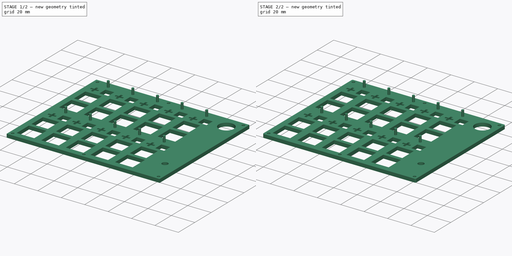
[diagram: build sequence overview — one tinted view per stage of 2, left to right]
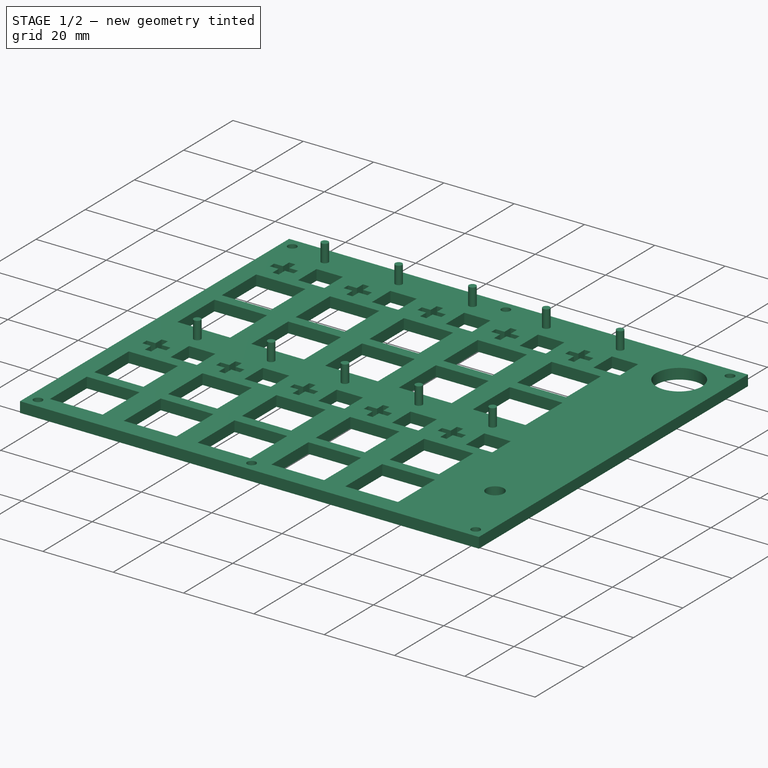
[diagram: stage 1 of 2 — iso view after this stage's code; geometry added in this stage tinted green]
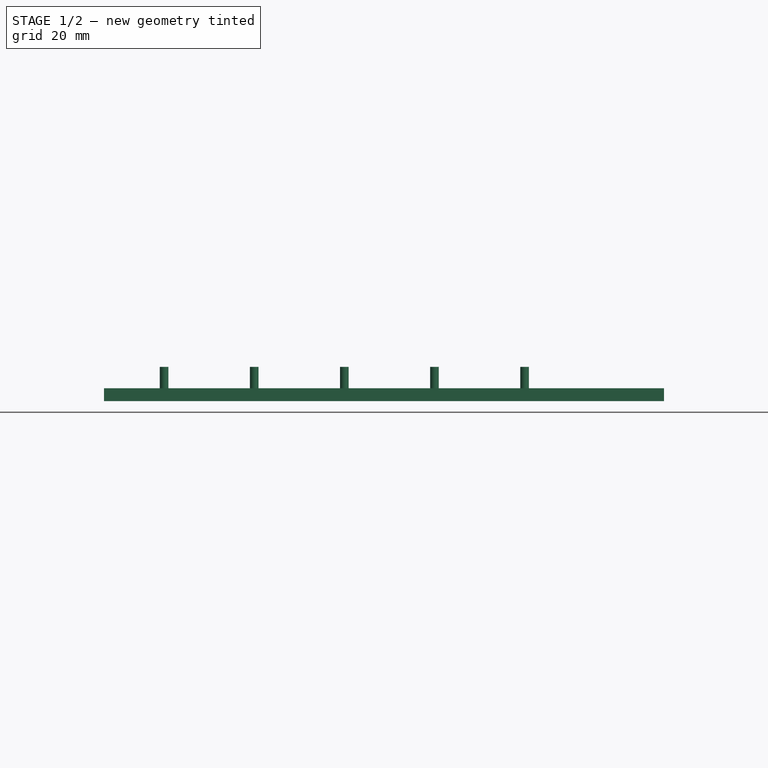
[diagram: stage 1 of 2 — front view after this stage's code; geometry added in this stage tinted green]
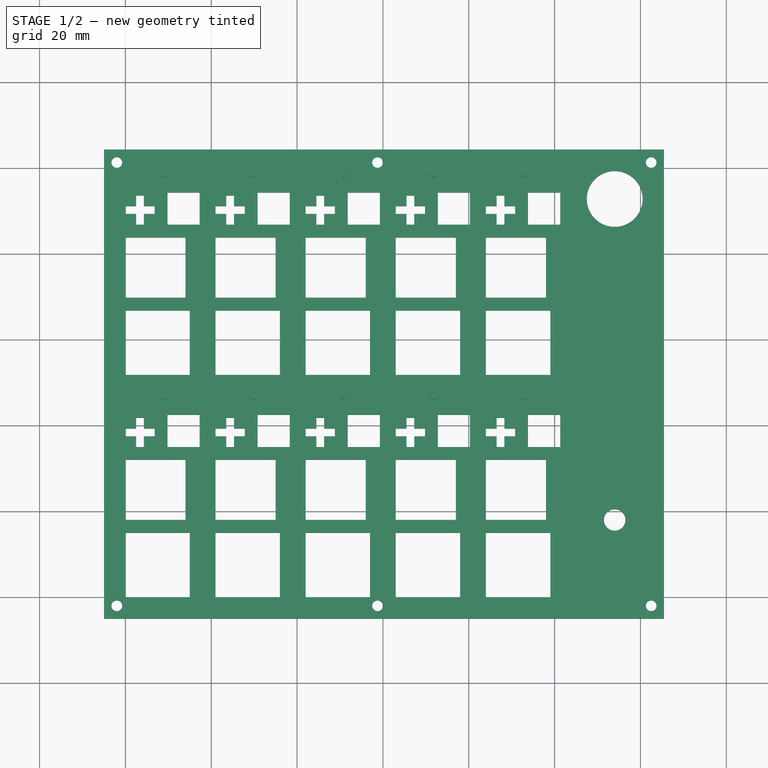
[diagram: stage 1 of 2 — top view after this stage's code; geometry added in this stage tinted green]
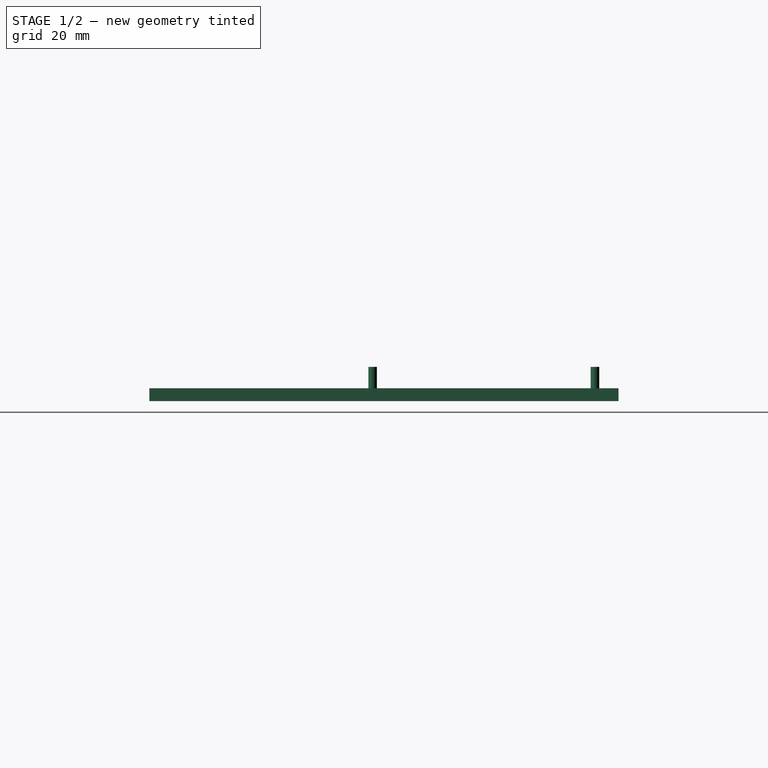
[diagram: stage 1 of 2 — right view after this stage's code; geometry added in this stage tinted green]
FCSTD DOCUMENT  (FreeCAD 0.18R16146 (Git))
Label: lube_station
License: All rights reserved
LicenseURL: http://en.wikipedia.org/wiki/All_rights_reserved
objects: Sketcher::SketchObject×2, PartDesign::Pad×2, PartDesign::Fillet×1, PartDesign::Body×1
note: 8 computed .brp shape members not serialized (recipe doc carries the construction recipe); baked Part::Feature solids carry a one-line shape summary decoded from their .brp

FEATURE [Sketcher::SketchObject] Sketch
  MapMode = 5
  Support = -> [XY_Plane]
  sketch-geometry (256):
    g0: LineSegment StartX=0 StartY=66.8 StartZ=0 EndX=15 EndY=66.8 EndZ=0
    g1: LineSegment StartX=15 StartY=66.8 StartZ=0 EndX=15 EndY=51.8 EndZ=0
    g2: LineSegment StartX=15 StartY=51.8 StartZ=0 EndX=0 EndY=51.8 EndZ=0
    g3: LineSegment StartX=0 StartY=51.8 StartZ=0 EndX=0 EndY=66.8 EndZ=0
    g4: LineSegment StartX=0 StartY=83.8 StartZ=0 EndX=14 EndY=83.8 EndZ=0
    g5: LineSegment StartX=14 StartY=83.8 StartZ=0 EndX=14 EndY=69.8 EndZ=0
    g6: LineSegment StartX=14 StartY=69.8 StartZ=0 EndX=0 EndY=69.8 EndZ=0
    g7: LineSegment StartX=0 StartY=69.8 StartZ=0 EndX=0 EndY=83.8 EndZ=0
    g8: LineSegment StartX=9.8 StartY=94.3 StartZ=0 EndX=17.3 EndY=94.3 EndZ=0
    g9: LineSegment StartX=17.3 StartY=94.3 StartZ=0 EndX=17.3 EndY=86.8 EndZ=0
    g10: LineSegment StartX=17.3 StartY=86.8 StartZ=0 EndX=9.8 EndY=86.8 EndZ=0
    g11: LineSegment StartX=9.8 StartY=86.8 StartZ=0 EndX=9.8 EndY=94.3 EndZ=0
    g12: LineSegment StartX=2.5 StartY=93.6 StartZ=0 EndX=4.3 EndY=93.6 EndZ=0
    g13: LineSegment StartX=4.3 StartY=93.6 StartZ=0 EndX=4.3 EndY=91.1 EndZ=0
    g14: LineSegment StartX=4.3 StartY=86.8 StartZ=0 EndX=2.5 EndY=86.8 EndZ=0
    g15: LineSegment StartX=2.5 StartY=86.8 StartZ=0 EndX=2.5 EndY=89.3 EndZ=0
    g16: LineSegment StartX=0 StartY=91.1 StartZ=0 EndX=2.5 EndY=91.1 EndZ=0
    g17: LineSegment StartX=6.8 StartY=91.1 StartZ=0 EndX=6.8 EndY=89.3 EndZ=0
    g18: LineSegment StartX=6.8 StartY=89.3 StartZ=0 EndX=4.3 EndY=89.3 EndZ=0
    g19: LineSegment StartX=0 StartY=89.3 StartZ=0 EndX=0 EndY=91.1 EndZ=0
    g20: LineSegment StartX=4.3 StartY=91.1 StartZ=0 EndX=6.8 EndY=91.1 EndZ=0
    g21: LineSegment StartX=4.3 StartY=89.3 StartZ=0 EndX=4.3 EndY=86.8 EndZ=0
    g22: LineSegment StartX=2.5 StartY=91.1 StartZ=0 EndX=2.5 EndY=93.6 EndZ=0
    g23: LineSegment StartX=2.5 StartY=89.3 StartZ=0 EndX=0 EndY=89.3 EndZ=0
    g24: LineSegment StartX=42 StartY=66.8 StartZ=0 EndX=57 EndY=66.8 EndZ=0
    g25: LineSegment StartX=57 StartY=66.8 StartZ=0 EndX=57 EndY=51.8 EndZ=0
    g26: LineSegment StartX=57 StartY=51.8 StartZ=0 EndX=42 EndY=51.8 EndZ=0
    g27: LineSegment StartX=42 StartY=51.8 StartZ=0 EndX=42 EndY=66.8 EndZ=0
    g28: LineSegment StartX=42 StartY=83.8 StartZ=0 EndX=56 EndY=83.8 EndZ=0
    g29: LineSegment StartX=56 StartY=83.8 StartZ=0 EndX=56 EndY=69.8 EndZ=0
    g30: LineSegment StartX=56 StartY=69.8 StartZ=0 EndX=42 EndY=69.8 EndZ=0
    g31: LineSegment StartX=42 StartY=69.8 StartZ=0 EndX=42 EndY=83.8 EndZ=0
    g32: LineSegment StartX=51.8 StartY=94.3 StartZ=0 EndX=59.3 EndY=94.3 EndZ=0
    g33: LineSegment StartX=59.3 StartY=94.3 StartZ=0 EndX=59.3 EndY=86.8 EndZ=0
    g34: LineSegment StartX=59.3 StartY=86.8 StartZ=0 EndX=51.8 EndY=86.8 EndZ=0
    g35: LineSegment StartX=51.8 StartY=86.8 StartZ=0 EndX=51.8 EndY=94.3 EndZ=0
    g36: LineSegment StartX=44.5 StartY=93.6 StartZ=0 EndX=46.3 EndY=93.6 EndZ=0
    g37: LineSegment StartX=46.3 StartY=93.6 StartZ=0 EndX=46.3 EndY=91.1 EndZ=0
    g38: LineSegment StartX=46.3 StartY=86.8 StartZ=0 EndX=44.5 EndY=86.8 EndZ=0
    g39: LineSegment StartX=44.5 StartY=86.8 StartZ=0 EndX=44.5 EndY=89.3 EndZ=0
    g40: LineSegment StartX=42 StartY=91.1 StartZ=0 EndX=44.5 EndY=91.1 EndZ=0
    g41: LineSegment StartX=48.8 StartY=91.1 StartZ=0 EndX=48.8 EndY=89.3 EndZ=0
    g42: LineSegment StartX=48.8 StartY=89.3 StartZ=0 EndX=46.3 EndY=89.3 EndZ=0
    g43: LineSegment StartX=42 StartY=89.3 StartZ=0 EndX=42 EndY=91.1 EndZ=0
    g44: LineSegment StartX=46.3 StartY=91.1 StartZ=0 EndX=48.8 EndY=91.1 EndZ=0
    g45: LineSegment StartX=46.3 StartY=89.3 StartZ=0 EndX=46.3 EndY=86.8 EndZ=0
    g46: LineSegment StartX=44.5 StartY=91.1 StartZ=0 EndX=44.5 EndY=93.6 EndZ=0
    g47: LineSegment StartX=44.5 StartY=89.3 StartZ=0 EndX=42 EndY=89.3 EndZ=0
    g48: LineSegment StartX=63 StartY=66.8 StartZ=0 EndX=78 EndY=66.8 EndZ=0
    g49: LineSegment StartX=78 StartY=66.8 StartZ=0 EndX=78 EndY=51.8 EndZ=0
    g50: LineSegment StartX=78 StartY=51.8 StartZ=0 EndX=63 EndY=51.8 EndZ=0
    g51: LineSegment StartX=63 StartY=51.8 StartZ=0 EndX=63 EndY=66.8 EndZ=0
    g52: LineSegment StartX=63 StartY=83.8 StartZ=0 EndX=77 EndY=83.8 EndZ=0
    g53: LineSegment StartX=77 StartY=83.8 StartZ=0 EndX=77 EndY=69.8 EndZ=0
    g54: LineSegment StartX=77 StartY=69.8 StartZ=0 EndX=63 EndY=69.8 EndZ=0
    g55: LineSegment StartX=63 StartY=69.8 StartZ=0 EndX=63 EndY=83.8 EndZ=0
    g56: LineSegment StartX=72.8 StartY=94.3 StartZ=0 EndX=80.3 EndY=94.3 EndZ=0
    g57: LineSegment StartX=80.3 StartY=94.3 StartZ=0 EndX=80.3 EndY=86.8 EndZ=0
    g58: LineSegment StartX=80.3 StartY=86.8 StartZ=0 EndX=72.8 EndY=86.8 EndZ=0
    g59: LineSegment StartX=72.8 StartY=86.8 StartZ=0 EndX=72.8 EndY=94.3 EndZ=0
    g60: LineSegment StartX=65.5 StartY=93.6 StartZ=0 EndX=67.3 EndY=93.6 EndZ=0
    g61: LineSegment StartX=67.3 StartY=93.6 StartZ=0 EndX=67.3 EndY=91.1 EndZ=0
    g62: LineSegment StartX=67.3 StartY=86.8 StartZ=0 EndX=65.5 EndY=86.8 EndZ=0
    g63: LineSegment StartX=65.5 StartY=86.8 StartZ=0 EndX=65.5 EndY=89.3 EndZ=0
    g64: LineSegment StartX=63 StartY=91.1 StartZ=0 EndX=65.5 EndY=91.1 EndZ=0
    g65: LineSegment StartX=69.8 StartY=91.1 StartZ=0 EndX=69.8 EndY=89.3 EndZ=0
    g66: LineSegment StartX=69.8 StartY=89.3 StartZ=0 EndX=67.3 EndY=89.3 EndZ=0
    g67: LineSegment StartX=63 StartY=89.3 StartZ=0 EndX=63 EndY=91.1 EndZ=0
    g68: LineSegment StartX=67.3 StartY=91.1 StartZ=0 EndX=69.8 EndY=91.1 EndZ=0
    g69: LineSegment StartX=67.3 StartY=89.3 StartZ=0 EndX=67.3 EndY=86.8 EndZ=0
    g70: LineSegment StartX=65.5 StartY=91.1 StartZ=0 EndX=65.5 EndY=93.6 EndZ=0
    g71: LineSegment StartX=65.5 StartY=89.3 StartZ=0 EndX=63 EndY=89.3 EndZ=0
    g72: LineSegment StartX=84 StartY=66.8 StartZ=0 EndX=99 EndY=66.8 EndZ=0
    g73: LineSegment StartX=99 StartY=66.8 StartZ=0 EndX=99 EndY=51.8 EndZ=0
    g74: LineSegment StartX=99 StartY=51.8 StartZ=0 EndX=84 EndY=51.8 EndZ=0
    g75: LineSegment StartX=84 StartY=51.8 StartZ=0 EndX=84 EndY=66.8 EndZ=0
    g76: LineSegment StartX=84 StartY=83.8 StartZ=0 EndX=98 EndY=83.8 EndZ=0
    g77: LineSegment StartX=98 StartY=83.8 StartZ=0 EndX=98 EndY=69.8 EndZ=0
    g78: LineSegment StartX=98 StartY=69.8 StartZ=0 EndX=84 EndY=69.8 EndZ=0
    g79: LineSegment StartX=84 StartY=69.8 StartZ=0 EndX=84 EndY=83.8 EndZ=0
    g80: LineSegment StartX=93.8 StartY=94.3 StartZ=0 EndX=101.3 EndY=94.3 EndZ=0
    g81: LineSegment StartX=101.3 StartY=94.3 StartZ=0 EndX=101.3 EndY=86.8 EndZ=0
    g82: LineSegment StartX=101.3 StartY=86.8 StartZ=0 EndX=93.8 EndY=86.8 EndZ=0
    g83: LineSegment StartX=93.8 StartY=86.8 StartZ=0 EndX=93.8 EndY=94.3 EndZ=0
    g84: LineSegment StartX=86.5 StartY=93.6 StartZ=0 EndX=88.3 EndY=93.6 EndZ=0
    g85: LineSegment StartX=88.3 StartY=93.6 StartZ=0 EndX=88.3 EndY=91.1 EndZ=0
    g86: LineSegment StartX=88.3 StartY=86.8 StartZ=0 EndX=86.5 EndY=86.8 EndZ=0
    g87: LineSegment StartX=86.5 StartY=86.8 StartZ=0 EndX=86.5 EndY=89.3 EndZ=0
    g88: LineSegment StartX=84 StartY=91.1 StartZ=0 EndX=86.5 EndY=91.1 EndZ=0
    g89: LineSegment StartX=90.8 StartY=91.1 StartZ=0 EndX=90.8 EndY=89.3 EndZ=0
    g90: LineSegment StartX=90.8 StartY=89.3 StartZ=0 EndX=88.3 EndY=89.3 EndZ=0
    g91: LineSegment StartX=84 StartY=89.3 StartZ=0 EndX=84 EndY=91.1 EndZ=0
    g92: LineSegment StartX=88.3 StartY=91.1 StartZ=0 EndX=90.8 EndY=91.1 EndZ=0
    g93: LineSegment StartX=88.3 StartY=89.3 StartZ=0 EndX=88.3 EndY=86.8 EndZ=0
    g94: LineSegment StartX=86.5 StartY=91.1 StartZ=0 EndX=86.5 EndY=93.6 EndZ=0
    g95: LineSegment StartX=86.5 StartY=89.3 StartZ=0 EndX=84 EndY=89.3 EndZ=0
    g96: LineSegment StartX=21 StartY=66.8 StartZ=0 EndX=36 EndY=66.8 EndZ=0
    g97: LineSegment StartX=36 StartY=66.8 StartZ=0 EndX=36 EndY=51.8 EndZ=0
    g98: LineSegment StartX=36 StartY=51.8 StartZ=0 EndX=21 EndY=51.8 EndZ=0
    g99: LineSegment StartX=21 StartY=51.8 StartZ=0 EndX=21 EndY=66.8 EndZ=0
    g100: LineSegment StartX=21 StartY=83.8 StartZ=0 EndX=35 EndY=83.8 EndZ=0
    g101: LineSegment StartX=35 StartY=83.8 StartZ=0 EndX=35 EndY=69.8 EndZ=0
    g102: LineSegment StartX=35 StartY=69.8 StartZ=0 EndX=21 EndY=69.8 EndZ=0
    g103: LineSegment StartX=21 StartY=69.8 StartZ=0 EndX=21 EndY=83.8 EndZ=0
    g104: LineSegment StartX=30.8 StartY=94.3 StartZ=0 EndX=38.3 EndY=94.3 EndZ=0
    g105: LineSegment StartX=38.3 StartY=94.3 StartZ=0 EndX=38.3 EndY=86.8 EndZ=0
    g106: LineSegment StartX=38.3 StartY=86.8 StartZ=0 EndX=30.8 EndY=86.8 EndZ=0
    g107: LineSegment StartX=30.8 StartY=86.8 StartZ=0 EndX=30.8 EndY=94.3 EndZ=0
    g108: LineSegment StartX=23.5 StartY=93.6 StartZ=0 EndX=25.3 EndY=93.6 EndZ=0
    g109: LineSegment StartX=25.3 StartY=93.6 StartZ=0 EndX=25.3 EndY=91.1 EndZ=0
    g110: LineSegment StartX=25.3 StartY=86.8 StartZ=0 EndX=23.5 EndY=86.8 EndZ=0
    g111: LineSegment StartX=23.5 StartY=86.8 StartZ=0 EndX=23.5 EndY=89.3 EndZ=0
    g112: LineSegment StartX=21 StartY=91.1 StartZ=0 EndX=23.5 EndY=91.1 EndZ=0
    g113: LineSegment StartX=27.8 StartY=91.1 StartZ=0 EndX=27.8 EndY=89.3 EndZ=0
    g114: LineSegment StartX=27.8 StartY=89.3 StartZ=0 EndX=25.3 EndY=89.3 EndZ=0
    g115: LineSegment StartX=21 StartY=89.3 StartZ=0 EndX=21 EndY=91.1 EndZ=0
    g116: LineSegment StartX=25.3 StartY=91.1 StartZ=0 EndX=27.8 EndY=91.1 EndZ=0
    g117: LineSegment StartX=25.3 StartY=89.3 StartZ=0 EndX=25.3 EndY=86.8 EndZ=0
    g118: LineSegment StartX=23.5 StartY=91.1 StartZ=0 EndX=23.5 EndY=93.6 EndZ=0
    g119: LineSegment StartX=23.5 StartY=89.3 StartZ=0 EndX=21 EndY=89.3 EndZ=0
    g120: LineSegment StartX=0 StartY=15 StartZ=0 EndX=15 EndY=15 EndZ=0
    g121: LineSegment StartX=15 StartY=15 StartZ=0 EndX=15 EndY=0 EndZ=0
    g122: LineSegment StartX=15 StartY=0 StartZ=0 EndX=0 EndY=0 EndZ=0
    g123: LineSegment StartX=0 StartY=0 StartZ=0 EndX=0 EndY=15 EndZ=0
    g124: LineSegment StartX=0 StartY=32 StartZ=0 EndX=14 EndY=32 EndZ=0
    g125: LineSegment StartX=14 StartY=32 StartZ=0 EndX=14 EndY=18 EndZ=0
    g126: LineSegment StartX=14 StartY=18 StartZ=0 EndX=0 EndY=18 EndZ=0
    g127: LineSegment StartX=0 StartY=18 StartZ=0 EndX=0 EndY=32 EndZ=0
    g128: LineSegment StartX=9.8 StartY=42.5 StartZ=0 EndX=17.3 EndY=42.5 EndZ=0
    g129: LineSegment StartX=17.3 StartY=42.5 StartZ=0 EndX=17.3 EndY=35 EndZ=0
    g130: LineSegment StartX=17.3 StartY=35 StartZ=0 EndX=9.8 EndY=35 EndZ=0
    g131: LineSegment StartX=9.8 StartY=35 StartZ=0 EndX=9.8 EndY=42.5 EndZ=0
    g132: LineSegment StartX=2.5 StartY=41.8 StartZ=0 EndX=4.3 EndY=41.8 EndZ=0
    g133: LineSegment StartX=4.3 StartY=41.8 StartZ=0 EndX=4.3 EndY=39.3 EndZ=0
    g134: LineSegment StartX=4.3 StartY=35 StartZ=0 EndX=2.5 EndY=35 EndZ=0
    g135: LineSegment StartX=2.5 StartY=35 StartZ=0 EndX=2.5 EndY=37.5 EndZ=0
    g136: LineSegment StartX=0 StartY=39.3 StartZ=0 EndX=2.5 EndY=39.3 EndZ=0
    g137: LineSegment StartX=6.8 StartY=39.3 StartZ=0 EndX=6.8 EndY=37.5 EndZ=0
    g138: LineSegment StartX=6.8 StartY=37.5 StartZ=0 EndX=4.3 EndY=37.5 EndZ=0
    g139: LineSegment StartX=0 StartY=37.5 StartZ=0 EndX=0 EndY=39.3 EndZ=0
    g140: LineSegment StartX=4.3 StartY=39.3 StartZ=0 EndX=6.8 EndY=39.3 EndZ=0
    g141: LineSegment StartX=4.3 StartY=37.5 StartZ=0 EndX=4.3 EndY=35 EndZ=0
    g142: LineSegment StartX=2.5 StartY=39.3 StartZ=0 EndX=2.5 EndY=41.8 EndZ=0
    g143: LineSegment StartX=2.5 StartY=37.5 StartZ=0 EndX=0 EndY=37.5 EndZ=0
    g144: LineSegment StartX=42 StartY=15 StartZ=0 EndX=57 EndY=15 EndZ=0
    g145: LineSegment StartX=57 StartY=15 StartZ=0 EndX=57 EndY=0 EndZ=0
    g146: LineSegment StartX=57 StartY=0 StartZ=0 EndX=42 EndY=0 EndZ=0
    g147: LineSegment StartX=42 StartY=0 StartZ=0 EndX=42 EndY=15 EndZ=0
    g148: LineSegment StartX=42 StartY=32 StartZ=0 EndX=56 EndY=32 EndZ=0
    g149: LineSegment StartX=56 StartY=32 StartZ=0 EndX=56 EndY=18 EndZ=0
    g150: LineSegment StartX=56 StartY=18 StartZ=0 EndX=42 EndY=18 EndZ=0
    g151: LineSegment StartX=42 StartY=18 StartZ=0 EndX=42 EndY=32 EndZ=0
    g152: LineSegment StartX=51.8 StartY=42.5 StartZ=0 EndX=59.3 EndY=42.5 EndZ=0
    g153: LineSegment StartX=59.3 StartY=42.5 StartZ=0 EndX=59.3 EndY=35 EndZ=0
    g154: LineSegment StartX=59.3 StartY=35 StartZ=0 EndX=51.8 EndY=35 EndZ=0
    g155: LineSegment StartX=51.8 StartY=35 StartZ=0 EndX=51.8 EndY=42.5 EndZ=0
    g156: LineSegment StartX=44.5 StartY=41.8 StartZ=0 EndX=46.3 EndY=41.8 EndZ=0
    g157: LineSegment StartX=46.3 StartY=41.8 StartZ=0 EndX=46.3 EndY=39.3 EndZ=0
    g158: LineSegment StartX=46.3 StartY=35 StartZ=0 EndX=44.5 EndY=35 EndZ=0
    g159: LineSegment StartX=44.5 StartY=35 StartZ=0 EndX=44.5 EndY=37.5 EndZ=0
    g160: LineSegment StartX=42 StartY=39.3 StartZ=0 EndX=44.5 EndY=39.3 EndZ=0
    g161: LineSegment StartX=48.8 StartY=39.3 StartZ=0 EndX=48.8 EndY=37.5 EndZ=0
    g162: LineSegment StartX=48.8 StartY=37.5 StartZ=0 EndX=46.3 EndY=37.5 EndZ=0
    g163: LineSegment StartX=42 StartY=37.5 StartZ=0 EndX=42 EndY=39.3 EndZ=0
    g164: LineSegment StartX=46.3 StartY=39.3 StartZ=0 EndX=48.8 EndY=39.3 EndZ=0
    g165: LineSegment StartX=46.3 StartY=37.5 StartZ=0 EndX=46.3 EndY=35 EndZ=0
    g166: LineSegment StartX=44.5 StartY=39.3 StartZ=0 EndX=44.5 EndY=41.8 EndZ=0
    g167: LineSegment StartX=44.5 StartY=37.5 StartZ=0 EndX=42 EndY=37.5 EndZ=0
    g168: LineSegment StartX=63 StartY=15 StartZ=0 EndX=78 EndY=15 EndZ=0
    g169: LineSegment StartX=78 StartY=15 StartZ=0 EndX=78 EndY=0 EndZ=0
    g170: LineSegment StartX=78 StartY=0 StartZ=0 EndX=63 EndY=0 EndZ=0
    g171: LineSegment StartX=63 StartY=0 StartZ=0 EndX=63 EndY=15 EndZ=0
    g172: LineSegment StartX=63 StartY=32 StartZ=0 EndX=77 EndY=32 EndZ=0
    g173: LineSegment StartX=77 StartY=32 StartZ=0 EndX=77 EndY=18 EndZ=0
    g174: LineSegment StartX=77 StartY=18 StartZ=0 EndX=63 EndY=18 EndZ=0
    g175: LineSegment StartX=63 StartY=18 StartZ=0 EndX=63 EndY=32 EndZ=0
    g176: LineSegment StartX=72.8 StartY=42.5 StartZ=0 EndX=80.3 EndY=42.5 EndZ=0
    g177: LineSegment StartX=80.3 StartY=42.5 StartZ=0 EndX=80.3 EndY=35 EndZ=0
    g178: LineSegment StartX=80.3 StartY=35 StartZ=0 EndX=72.8 EndY=35 EndZ=0
    g179: LineSegment StartX=72.8 StartY=35 StartZ=0 EndX=72.8 EndY=42.5 EndZ=0
    g180: LineSegment StartX=65.5 StartY=41.8 StartZ=0 EndX=67.3 EndY=41.8 EndZ=0
    g181: LineSegment StartX=67.3 StartY=41.8 StartZ=0 EndX=67.3 EndY=39.3 EndZ=0
    g182: LineSegment StartX=67.3 StartY=35 StartZ=0 EndX=65.5 EndY=35 EndZ=0
    g183: LineSegment StartX=65.5 StartY=35 StartZ=0 EndX=65.5 EndY=37.5 EndZ=0
    g184: LineSegment StartX=63 StartY=39.3 StartZ=0 EndX=65.5 EndY=39.3 EndZ=0
    g185: LineSegment StartX=69.8 StartY=39.3 StartZ=0 EndX=69.8 EndY=37.5 EndZ=0
    g186: LineSegment StartX=69.8 StartY=37.5 StartZ=0 EndX=67.3 EndY=37.5 EndZ=0
    g187: LineSegment StartX=63 StartY=37.5 StartZ=0 EndX=63 EndY=39.3 EndZ=0
    g188: LineSegment StartX=67.3 StartY=39.3 StartZ=0 EndX=69.8 EndY=39.3 EndZ=0
    g189: LineSegment StartX=67.3 StartY=37.5 StartZ=0 EndX=67.3 EndY=35 EndZ=0
    g190: LineSegment StartX=65.5 StartY=39.3 StartZ=0 EndX=65.5 EndY=41.8 EndZ=0
    g191: LineSegment StartX=65.5 StartY=37.5 StartZ=0 EndX=63 EndY=37.5 EndZ=0
    g192: LineSegment StartX=84 StartY=15 StartZ=0 EndX=99 EndY=15 EndZ=0
    g193: LineSegment StartX=99 StartY=15 StartZ=0 EndX=99 EndY=0 EndZ=0
    g194: LineSegment StartX=99 StartY=0 StartZ=0 EndX=84 EndY=0 EndZ=0
    g195: LineSegment StartX=84 StartY=0 StartZ=0 EndX=84 EndY=15 EndZ=0
    g196: LineSegment StartX=84 StartY=32 StartZ=0 EndX=98 EndY=32 EndZ=0
    g197: LineSegment StartX=98 StartY=32 StartZ=0 EndX=98 EndY=18 EndZ=0
    g198: LineSegment StartX=98 StartY=18 StartZ=0 EndX=84 EndY=18 EndZ=0
    g199: LineSegment StartX=84 StartY=18 StartZ=0 EndX=84 EndY=32 EndZ=0
    g200: LineSegment StartX=93.8 StartY=42.5 StartZ=0 EndX=101.3 EndY=42.5 EndZ=0
    g201: LineSegment StartX=101.3 StartY=42.5 StartZ=0 EndX=101.3 EndY=35 EndZ=0
    g202: LineSegment StartX=101.3 StartY=35 StartZ=0 EndX=93.8 EndY=35 EndZ=0
    g203: LineSegment StartX=93.8 StartY=35 StartZ=0 EndX=93.8 EndY=42.5 EndZ=0
    g204: LineSegment StartX=86.5 StartY=41.8 StartZ=0 EndX=88.3 EndY=41.8 EndZ=0
    g205: LineSegment StartX=88.3 StartY=41.8 StartZ=0 EndX=88.3 EndY=39.3 EndZ=0
    g206: LineSegment StartX=88.3 StartY=35 StartZ=0 EndX=86.5 EndY=35 EndZ=0
    g207: LineSegment StartX=86.5 StartY=35 StartZ=0 EndX=86.5 EndY=37.5 EndZ=0
    g208: LineSegment StartX=84 StartY=39.3 StartZ=0 EndX=86.5 EndY=39.3 EndZ=0
    g209: LineSegment StartX=90.8 StartY=39.3 StartZ=0 EndX=90.8 EndY=37.5 EndZ=0
    g210: LineSegment StartX=90.8 StartY=37.5 StartZ=0 EndX=88.3 EndY=37.5 EndZ=0
    g211: LineSegment StartX=84 StartY=37.5 StartZ=0 EndX=84 EndY=39.3 EndZ=0
    g212: LineSegment StartX=88.3 StartY=39.3 StartZ=0 EndX=90.8 EndY=39.3 EndZ=0
    g213: LineSegment StartX=88.3 StartY=37.5 StartZ=0 EndX=88.3 EndY=35 EndZ=0
    g214: LineSegment StartX=86.5 StartY=39.3 StartZ=0 EndX=86.5 EndY=41.8 EndZ=0
    g215: LineSegment StartX=86.5 StartY=37.5 StartZ=0 EndX=84 EndY=37.5 EndZ=0
    g216: LineSegment StartX=21 StartY=15 StartZ=0 EndX=36 EndY=15 EndZ=0
    g217: LineSegment StartX=36 StartY=15 StartZ=0 EndX=36 EndY=0 EndZ=0
    g218: LineSegment StartX=36 StartY=0 StartZ=0 EndX=21 EndY=0 EndZ=0
    g219: LineSegment StartX=21 StartY=0 StartZ=0 EndX=21 EndY=15 EndZ=0
    g220: LineSegment StartX=21 StartY=32 StartZ=0 EndX=35 EndY=32 EndZ=0
    g221: LineSegment StartX=35 StartY=32 StartZ=0 EndX=35 EndY=18 EndZ=0
    g222: LineSegment StartX=35 StartY=18 StartZ=0 EndX=21 EndY=18 EndZ=0
    g223: LineSegment StartX=21 StartY=18 StartZ=0 EndX=21 EndY=32 EndZ=0
    g224: LineSegment StartX=30.8 StartY=42.5 StartZ=0 EndX=38.3 EndY=42.5 EndZ=0
    g225: LineSegment StartX=38.3 StartY=42.5 StartZ=0 EndX=38.3 EndY=35 EndZ=0
    g226: LineSegment StartX=38.3 StartY=35 StartZ=0 EndX=30.8 EndY=35 EndZ=0
    g227: LineSegment StartX=30.8 StartY=35 StartZ=0 EndX=30.8 EndY=42.5 EndZ=0
    g228: LineSegment StartX=23.5 StartY=41.8 StartZ=0 EndX=25.3 EndY=41.8 EndZ=0
    g229: LineSegment StartX=25.3 StartY=41.8 StartZ=0 EndX=25.3 EndY=39.3 EndZ=0
    g230: LineSegment StartX=25.3 StartY=35 StartZ=0 EndX=23.5 EndY=35 EndZ=0
    g231: LineSegment StartX=23.5 StartY=35 StartZ=0 EndX=23.5 EndY=37.5 EndZ=0
    g232: LineSegment StartX=21 StartY=39.3 StartZ=0 EndX=23.5 EndY=39.3 EndZ=0
    g233: LineSegment StartX=27.8 StartY=39.3 StartZ=0 EndX=27.8 EndY=37.5 EndZ=0
    g234: LineSegment StartX=27.8 StartY=37.5 StartZ=0 EndX=25.3 EndY=37.5 EndZ=0
    g235: LineSegment StartX=21 StartY=37.5 StartZ=0 EndX=21 EndY=39.3 EndZ=0
    g236: LineSegment StartX=25.3 StartY=39.3 StartZ=0 EndX=27.8 EndY=39.3 EndZ=0
    g237: LineSegment StartX=25.3 StartY=37.5 StartZ=0 EndX=25.3 EndY=35 EndZ=0
    g238: LineSegment StartX=23.5 StartY=39.3 StartZ=0 EndX=23.5 EndY=41.8 EndZ=0
    g239: LineSegment StartX=23.5 StartY=37.5 StartZ=0 EndX=21 EndY=37.5 EndZ=0
    g240: Circle CenterX=114 CenterY=92.8 CenterZ=0 NormalX=0 NormalY=0 NormalZ=1 AngleXU=0 Radius=6.5
    g241: Circle CenterX=114 CenterY=18 CenterZ=0 NormalX=0 NormalY=0 NormalZ=1 AngleXU=0 Radius=2.5
    g242: LineSegment StartX=-5 StartY=104.3 StartZ=0 EndX=125.5 EndY=104.3 EndZ=0
    g243: LineSegment StartX=125.5 StartY=104.3 StartZ=0 EndX=125.5 EndY=-5 EndZ=0
    g244: LineSegment StartX=125.5 StartY=-5 StartZ=0 EndX=-5 EndY=-5 EndZ=0
    g245: LineSegment StartX=-5 StartY=-5 StartZ=0 EndX=-5 EndY=104.3 EndZ=0
    g246: Circle CenterX=-2 CenterY=101.3 CenterZ=0 NormalX=0 NormalY=0 NormalZ=1 AngleXU=0 Radius=1.25
    g247: Circle CenterX=58.75 CenterY=101.3 CenterZ=0 NormalX=0 NormalY=0 NormalZ=1 AngleXU=0 Radius=1.25
    g248: Circle CenterX=122.5 CenterY=101.3 CenterZ=0 NormalX=0 NormalY=0 NormalZ=1 AngleXU=0 Radius=1.25
    g249: Circle CenterX=-2 CenterY=-2 CenterZ=0 NormalX=0 NormalY=0 NormalZ=1 AngleXU=0 Radius=1.25
    g250: Circle CenterX=58.75 CenterY=-2 CenterZ=0 NormalX=0 NormalY=0 NormalZ=1 AngleXU=0 Radius=1.25
    g251: Circle CenterX=122.5 CenterY=-2 CenterZ=0 NormalX=0 NormalY=0 NormalZ=1 AngleXU=0 Radius=1.25
    g252: LineSegment [constr] StartX=-2 StartY=101.3 StartZ=0 EndX=-5 EndY=101.3 EndZ=0
    g253: LineSegment [constr] StartX=-5 StartY=101.3 StartZ=0 EndX=58.75 EndY=101.3 EndZ=0
    g254: LineSegment [constr] StartX=58.75 StartY=101.3 StartZ=0 EndX=122.5 EndY=101.3 EndZ=0
    g255: LineSegment [constr] StartX=122.5 StartY=101.3 StartZ=0 EndX=125.5 EndY=101.3 EndZ=0
  constraints (721):
    c: Coincident(g0,g1)
    c: Coincident(g1,g2)
    c: Coincident(g2,g3)
    c: Coincident(g3,g0)
    c: Horizontal(g0)
    c: Horizontal(g2)
    c: Vertical(g1)
    c: Vertical(g3)
    c: Coincident(g4,g5)
    c: Coincident(g5,g6)
    c: Coincident(g6,g7)
    c: Coincident(g7,g4)
    c: Horizontal(g4)
    c: Horizontal(g6)
    c: Vertical(g5)
    c: Vertical(g7)
    c: Distance(g0) = 15
    c: Equal(g2,g3)
    c: Distance(g4) = 14
    c: Equal(g7,g4)
    c: Coincident(g8,g9)
    c: Coincident(g9,g10)
    c: Coincident(g10,g11)
    c: Coincident(g11,g8)
    c: Horizontal(g8)
    c: Horizontal(g10)
    c: Vertical(g9)
    c: Vertical(g11)
    c: Equal(g8,g11)
    c: Distance(g8) = 7.5
    c: Distance(g0,g6) = 3
    c: Distance(g10,g4) = 3
    c: Coincident(g12,g13)
    c: Coincident(g21,g14)
    c: Coincident(g14,g15)
    c: Coincident(g22,g12)
    c: Horizontal(g12)
    c: Horizontal(g14)
    c: Vertical(g13)
    c: Vertical(g15)
    c: Coincident(g20,g17)
    c: Coincident(g17,g18)
    c: Coincident(g23,g19)
    c: Coincident(g19,g16)
    c: Horizontal(g16)
    c: Horizontal(g18)
    c: Vertical(g17)
    c: Vertical(g19)
    c: Tangent(g16,g20)
    c: Coincident(g13,g20)
    c: Tangent(g13,g21)
    c: Coincident(g22,g16)
    c: Tangent(g15,g22)
    c: Coincident(g18,g21)
    c: Coincident(g23,g15)
    c: Tangent(g18,g23)
    c: Distance(g12) = 1.8
    c: Equal(g12,g19)
    c: Distance(g16) = 2.5
    c: Equal(g16,g20)
    c: Equal(g16,g15)
    c: Equal(g16,g22)
    c: Distance(g14,g4) = 3
    c: Distance(g10,g17) = 3
    c: DistanceX(g4,g19) = 0
    c: DistanceX(g0,g6) = 0
    c: Coincident(g24,g25)
    c: Coincident(g25,g26)
    c: Coincident(g26,g27)
    c: Coincident(g27,g24)
    c: Horizontal(g24)
    c: Horizontal(g26)
    c: Vertical(g25)
    c: Vertical(g27)
    c: Coincident(g28,g29)
    c: Coincident(g29,g30)
    c: Coincident(g30,g31)
    c: Coincident(g31,g28)
    c: Horizontal(g28)
    c: Horizontal(g30)
    c: Vertical(g29)
    c: Vertical(g31)
    c: Distance(g24) = 15
    c: Equal(g26,g27)
    c: Distance(g28) = 14
    c: Equal(g31,g28)
    c: Coincident(g32,g33)
    c: Coincident(g33,g34)
    c: Coincident(g34,g35)
    c: Coincident(g35,g32)
    c: Horizontal(g32)
    c: Horizontal(g34)
    c: Vertical(g33)
    c: Vertical(g35)
    c: Equal(g32,g35)
    c: Distance(g32) = 7.5
    c: Distance(g24,g30) = 3
    c: Distance(g34,g28) = 3
    c: Coincident(g36,g37)
    c: Coincident(g45,g38)
    c: Coincident(g38,g39)
    c: Coincident(g46,g36)
    c: Horizontal(g36)
    c: Horizontal(g38)
    c: Vertical(g37)
    c: Vertical(g39)
    c: Coincident(g44,g41)
    c: Coincident(g41,g42)
    c: Coincident(g47,g43)
    c: Coincident(g43,g40)
    c: Horizontal(g40)
    c: Horizontal(g42)
    c: Vertical(g41)
    c: Vertical(g43)
    c: Tangent(g40,g44)
    c: Coincident(g37,g44)
    c: Tangent(g37,g45)
    c: Coincident(g46,g40)
    c: Tangent(g39,g46)
    c: Coincident(g42,g45)
    c: Coincident(g47,g39)
    c: Tangent(g42,g47)
    c: Distance(g36) = 1.8
    c: Equal(g36,g43)
    c: Distance(g40) = 2.5
    c: Equal(g40,g44)
    c: Equal(g40,g39)
    c: Equal(g40,g46)
    c: Distance(g38,g28) = 3
    c: Distance(g34,g41) = 3
    c: DistanceX(g28,g43) = 0
    c: DistanceX(g24,g30) = 0
    c: Coincident(g48,g49)
    c: Coincident(g49,g50)
    c: Coincident(g50,g51)
    c: Coincident(g51,g48)
    c: Horizontal(g48)
    c: Horizontal(g50)
    c: Vertical(g49)
    c: Vertical(g51)
    c: Coincident(g52,g53)
    c: Coincident(g53,g54)
    c: Coincident(g54,g55)
    c: Coincident(g55,g52)
    c: Horizontal(g52)
    c: Horizontal(g54)
    c: Vertical(g53)
    c: Vertical(g55)
    c: Distance(g48) = 15
    c: Equal(g50,g51)
    c: Distance(g52) = 14
    c: Equal(g55,g52)
    c: Coincident(g56,g57)
    c: Coincident(g57,g58)
    c: Coincident(g58,g59)
    c: Coincident(g59,g56)
    c: Horizontal(g56)
    c: Horizontal(g58)
    c: Vertical(g57)
    c: Vertical(g59)
    c: Equal(g56,g59)
    c: Distance(g56) = 7.5
    c: Distance(g48,g54) = 3
    c: Distance(g58,g52) = 3
    c: Coincident(g60,g61)
    c: Coincident(g69,g62)
    c: Coincident(g62,g63)
    c: Coincident(g70,g60)
    c: Horizontal(g60)
    c: Horizontal(g62)
    c: Vertical(g61)
    c: Vertical(g63)
    c: Coincident(g68,g65)
    c: Coincident(g65,g66)
    c: Coincident(g71,g67)
    c: Coincident(g67,g64)
    c: Horizontal(g64)
    c: Horizontal(g66)
    c: Vertical(g65)
    c: Vertical(g67)
    c: Tangent(g64,g68)
    c: Coincident(g61,g68)
    c: Tangent(g61,g69)
    c: Coincident(g70,g64)
    c: Tangent(g63,g70)
    c: Coincident(g66,g69)
    c: Coincident(g71,g63)
    c: Tangent(g66,g71)
    c: Distance(g60) = 1.8
    c: Equal(g60,g67)
    c: Distance(g64) = 2.5
    c: Equal(g64,g68)
    c: Equal(g64,g63)
    c: Equal(g64,g70)
    c: Distance(g62,g52) = 3
    c: Distance(g58,g65) = 3
    c: DistanceX(g52,g67) = 0
    c: DistanceX(g48,g54) = 0
    c: Coincident(g72,g73)
    c: Coincident(g73,g74)
    c: Coincident(g74,g75)
    c: Coincident(g75,g72)
    c: Horizontal(g72)
    c: Horizontal(g74)
    c: Vertical(g73)
    c: Vertical(g75)
    c: Coincident(g76,g77)
    c: Coincident(g77,g78)
    c: Coincident(g78,g79)
    c: Coincident(g79,g76)
    c: Horizontal(g76)
    c: Horizontal(g78)
    c: Vertical(g77)
    c: Vertical(g79)
    c: Distance(g72) = 15
    c: Equal(g74,g75)
    c: Distance(g76) = 14
    c: Equal(g79,g76)
    c: Coincident(g80,g81)
    c: Coincident(g81,g82)
    c: Coincident(g82,g83)
    c: Coincident(g83,g80)
    c: Horizontal(g80)
    c: Horizontal(g82)
    c: Vertical(g81)
    c: Vertical(g83)
    c: Equal(g80,g83)
    c: Distance(g80) = 7.5
    c: Distance(g72,g78) = 3
    c: Distance(g82,g76) = 3
    c: Coincident(g84,g85)
    c: Coincident(g93,g86)
    c: Coincident(g86,g87)
    c: Coincident(g94,g84)
    c: Horizontal(g84)
    c: Horizontal(g86)
    c: Vertical(g85)
    c: Vertical(g87)
    c: Coincident(g92,g89)
    c: Coincident(g89,g90)
    c: Coincident(g95,g91)
    c: Coincident(g91,g88)
    c: Horizontal(g88)
    c: Horizontal(g90)
    c: Vertical(g89)
    c: Vertical(g91)
    c: Tangent(g88,g92)
    c: Coincident(g85,g92)
    c: Tangent(g85,g93)
    c: Coincident(g94,g88)
    c: Tangent(g87,g94)
    c: Coincident(g90,g93)
    c: Coincident(g95,g87)
    c: Tangent(g90,g95)
    c: Distance(g84) = 1.8
    c: Equal(g84,g91)
    c: Distance(g88) = 2.5
    c: Equal(g88,g92)
    c: Equal(g88,g87)
    c: Equal(g88,g94)
    c: Distance(g86,g76) = 3
    c: Distance(g82,g89) = 3
    c: DistanceX(g76,g91) = 0
    c: DistanceX(g72,g78) = 0
    c: PointOnObject(g26,g2)
    c: PointOnObject(g50,g2)
    c: PointOnObject(g74,g2)
    c: Coincident(g96,g97)
    c: Coincident(g97,g98)
    c: Coincident(g98,g99)
    c: Coincident(g99,g96)
    c: Horizontal(g96)
    c: Horizontal(g98)
    c: Vertical(g97)
    c: Vertical(g99)
    c: Coincident(g100,g101)
    c: Coincident(g101,g102)
    c: Coincident(g102,g103)
    c: Coincident(g103,g100)
    c: Horizontal(g100)
    c: Horizontal(g102)
    c: Vertical(g101)
    c: Vertical(g103)
    c: Distance(g96) = 15
    c: Equal(g98,g99)
    c: Distance(g100) = 14
    c: Equal(g103,g100)
    c: Coincident(g104,g105)
    c: Coincident(g105,g106)
    c: Coincident(g106,g107)
    c: Coincident(g107,g104)
    c: Horizontal(g104)
    c: Horizontal(g106)
    c: Vertical(g105)
    c: Vertical(g107)
    c: Equal(g104,g107)
    c: Distance(g104) = 7.5
    c: Distance(g96,g102) = 3
    c: Distance(g106,g100) = 3
    c: Coincident(g108,g109)
    c: Coincident(g117,g110)
    c: Coincident(g110,g111)
    c: Coincident(g118,g108)
    c: Horizontal(g108)
    c: Horizontal(g110)
    c: Vertical(g109)
    c: Vertical(g111)
    c: Coincident(g116,g113)
    c: Coincident(g113,g114)
    c: Coincident(g119,g115)
    c: Coincident(g115,g112)
    c: Horizontal(g112)
    c: Horizontal(g114)
    c: Vertical(g113)
    c: Vertical(g115)
    c: Tangent(g112,g116)
    c: Coincident(g109,g116)
    c: Tangent(g109,g117)
    c: Coincident(g118,g112)
    c: Tangent(g111,g118)
    c: Coincident(g114,g117)
    c: Coincident(g119,g111)
    c: Tangent(g114,g119)
    c: Distance(g108) = 1.8
    c: Equal(g108,g115)
    c: Distance(g112) = 2.5
    c: Equal(g112,g116)
    c: Equal(g112,g111)
    c: Equal(g112,g118)
    c: Distance(g110,g100) = 3
    c: Distance(g106,g113) = 3
    c: DistanceX(g100,g115) = 0
    c: DistanceX(g96,g102) = 0
    c: PointOnObject(g98,g2)
    c: DistanceX(g1,g98) = 6
    c: DistanceX(g97,g26) = 6
    c: DistanceX(g25,g50) = 6
    c: DistanceX(g49,g74) = 6
    c: Coincident(g120,g121)
    c: Coincident(g121,g122)
    c: Coincident(g122,g123)
    c: Coincident(g123,g120)
    c: Horizontal(g120)
    c: Horizontal(g122)
    c: Vertical(g121)
    c: Vertical(g123)
    c: Coincident(g124,g125)
    c: Coincident(g125,g126)
    c: Coincident(g126,g127)
    c: Coincident(g127,g124)
    c: Horizontal(g124)
    c: Horizontal(g126)
    c: Vertical(g125)
    c: Vertical(g127)
    c: Distance(g120) = 15
    c: Equal(g122,g123)
    c: Distance(g124) = 14
    c: Equal(g127,g124)
    c: Coincident(g128,g129)
    c: Coincident(g129,g130)
    c: Coincident(g130,g131)
    c: Coincident(g131,g128)
    c: Horizontal(g128)
    c: Horizontal(g130)
    c: Vertical(g129)
    c: Vertical(g131)
    c: Equal(g128,g131)
    c: Distance(g128) = 7.5
    c: Distance(g120,g126) = 3
    c: Distance(g130,g124) = 3
    c: Coincident(g132,g133)
    c: Coincident(g141,g134)
    c: Coincident(g134,g135)
    c: Coincident(g142,g132)
    c: Horizontal(g132)
    c: Horizontal(g134)
    c: Vertical(g133)
    c: Vertical(g135)
    c: Coincident(g140,g137)
    c: Coincident(g137,g138)
    c: Coincident(g143,g139)
    c: Coincident(g139,g136)
    c: Horizontal(g136)
    c: Horizontal(g138)
    c: Vertical(g137)
    c: Vertical(g139)
    c: Tangent(g136,g140)
    c: Coincident(g133,g140)
    c: Tangent(g133,g141)
    c: Coincident(g142,g136)
    c: Tangent(g135,g142)
    c: Coincident(g138,g141)
    c: Coincident(g143,g135)
    c: Tangent(g138,g143)
    c: Distance(g132) = 1.8
    c: Equal(g132,g139)
    c: Distance(g136) = 2.5
    c: Equal(g136,g140)
    c: Equal(g136,g135)
    c: Equal(g136,g142)
    c: Distance(g134,g124) = 3
    c: Distance(g130,g137) = 3
    c: DistanceX(g124,g139) = 0
    c: DistanceX(g120,g126) = 0
    c: Coincident(g144,g145)
    c: Coincident(g145,g146)
    c: Coincident(g146,g147)
    c: Coincident(g147,g144)
    c: Horizontal(g144)
    c: Horizontal(g146)
    c: Vertical(g145)
    c: Vertical(g147)
    c: Coincident(g148,g149)
    c: Coincident(g149,g150)
    c: Coincident(g150,g151)
    c: Coincident(g151,g148)
    c: Horizontal(g148)
    c: Horizontal(g150)
    c: Vertical(g149)
    c: Vertical(g151)
    c: Distance(g144) = 15
    c: Equal(g146,g147)
    c: Distance(g148) = 14
    c: Equal(g151,g148)
    c: Coincident(g152,g153)
    c: Coincident(g153,g154)
    c: Coincident(g154,g155)
    c: Coincident(g155,g152)
    c: Horizontal(g152)
    c: Horizontal(g154)
    c: Vertical(g153)
    c: Vertical(g155)
    c: Equal(g152,g155)
    c: Distance(g152) = 7.5
    c: Distance(g144,g150) = 3
    c: Distance(g154,g148) = 3
    c: Coincident(g156,g157)
    c: Coincident(g165,g158)
    c: Coincident(g158,g159)
    c: Coincident(g166,g156)
    c: Horizontal(g156)
    c: Horizontal(g158)
    c: Vertical(g157)
    c: Vertical(g159)
    c: Coincident(g164,g161)
    c: Coincident(g161,g162)
    c: Coincident(g167,g163)
    c: Coincident(g163,g160)
    c: Horizontal(g160)
    c: Horizontal(g162)
    c: Vertical(g161)
    c: Vertical(g163)
    c: Tangent(g160,g164)
    c: Coincident(g157,g164)
    c: Tangent(g157,g165)
    c: Coincident(g166,g160)
    c: Tangent(g159,g166)
    c: Coincident(g162,g165)
    c: Coincident(g167,g159)
    c: Tangent(g162,g167)
    c: Distance(g156) = 1.8
    c: Equal(g156,g163)
    c: Distance(g160) = 2.5
    c: Equal(g160,g164)
    c: Equal(g160,g159)
    c: Equal(g160,g166)
    c: Distance(g158,g148) = 3
    c: Distance(g154,g161) = 3
    c: DistanceX(g148,g163) = 0
    c: DistanceX(g144,g150) = 0
    c: Coincident(g168,g169)
    c: Coincident(g169,g170)
    c: Coincident(g170,g171)
    c: Coincident(g171,g168)
    c: Horizontal(g168)
    c: Horizontal(g170)
    c: Vertical(g169)
    c: Vertical(g171)
    c: Coincident(g172,g173)
    c: Coincident(g173,g174)
    c: Coincident(g174,g175)
    c: Coincident(g175,g172)
    c: Horizontal(g172)
    c: Horizontal(g174)
    c: Vertical(g173)
    c: Vertical(g175)
    c: Distance(g168) = 15
    c: Equal(g170,g171)
    c: Distance(g172) = 14
    c: Equal(g175,g172)
    c: Coincident(g176,g177)
    c: Coincident(g177,g178)
    c: Coincident(g178,g179)
    c: Coincident(g179,g176)
    c: Horizontal(g176)
    c: Horizontal(g178)
    c: Vertical(g177)
    c: Vertical(g179)
    c: Equal(g176,g179)
    c: Distance(g176) = 7.5
    c: Distance(g168,g174) = 3
    c: Distance(g178,g172) = 3
    c: Coincident(g180,g181)
    c: Coincident(g189,g182)
    c: Coincident(g182,g183)
    c: Coincident(g190,g180)
    c: Horizontal(g180)
    c: Horizontal(g182)
    c: Vertical(g181)
    c: Vertical(g183)
    c: Coincident(g188,g185)
    c: Coincident(g185,g186)
    c: Coincident(g191,g187)
    c: Coincident(g187,g184)
    c: Horizontal(g184)
    c: Horizontal(g186)
    c: Vertical(g185)
    c: Vertical(g187)
    c: Tangent(g184,g188)
    c: Coincident(g181,g188)
    c: Tangent(g181,g189)
    c: Coincident(g190,g184)
    c: Tangent(g183,g190)
    c: Coincident(g186,g189)
    c: Coincident(g191,g183)
    c: Tangent(g186,g191)
    c: Distance(g180) = 1.8
    c: Equal(g180,g187)
    c: Distance(g184) = 2.5
    c: Equal(g184,g188)
    c: Equal(g184,g183)
    c: Equal(g184,g190)
    c: Distance(g182,g172) = 3
    c: Distance(g178,g185) = 3
    c: DistanceX(g172,g187) = 0
    c: DistanceX(g168,g174) = 0
    c: Coincident(g192,g193)
    c: Coincident(g193,g194)
    c: Coincident(g194,g195)
    c: Coincident(g195,g192)
    c: Horizontal(g192)
    c: Horizontal(g194)
    c: Vertical(g193)
    c: Vertical(g195)
    c: Coincident(g196,g197)
    c: Coincident(g197,g198)
    c: Coincident(g198,g199)
    c: Coincident(g199,g196)
    c: Horizontal(g196)
    c: Horizontal(g198)
    c: Vertical(g197)
    c: Vertical(g199)
    c: Distance(g192) = 15
    c: Equal(g194,g195)
    c: Distance(g196) = 14
    c: Equal(g199,g196)
    c: Coincident(g200,g201)
    c: Coincident(g201,g202)
    c: Coincident(g202,g203)
    c: Coincident(g203,g200)
    c: Horizontal(g200)
    c: Horizontal(g202)
    c: Vertical(g201)
    c: Vertical(g203)
    c: Equal(g200,g203)
    c: Distance(g200) = 7.5
    c: Distance(g192,g198) = 3
    c: Distance(g202,g196) = 3
    c: Coincident(g204,g205)
    c: Coincident(g213,g206)
    c: Coincident(g206,g207)
    c: Coincident(g214,g204)
    c: Horizontal(g204)
    c: Horizontal(g206)
    c: Vertical(g205)
    c: Vertical(g207)
    c: Coincident(g212,g209)
    c: Coincident(g209,g210)
    c: Coincident(g215,g211)
    c: Coincident(g211,g208)
    c: Horizontal(g208)
    c: Horizontal(g210)
    c: Vertical(g209)
    c: Vertical(g211)
    c: Tangent(g208,g212)
    c: Coincident(g205,g212)
    c: Tangent(g205,g213)
    c: Coincident(g214,g208)
    c: Tangent(g207,g214)
    c: Coincident(g210,g213)
    c: Coincident(g215,g207)
    c: Tangent(g210,g215)
    c: Distance(g204) = 1.8
    c: Equal(g204,g211)
    c: Distance(g208) = 2.5
    c: Equal(g208,g212)
    c: Equal(g208,g207)
    c: Equal(g208,g214)
    c: Distance(g206,g196) = 3
    c: Distance(g202,g209) = 3
    c: DistanceX(g196,g211) = 0
    c: DistanceX(g192,g198) = 0
    c: PointOnObject(g146,g122)
    c: PointOnObject(g170,g122)
    c: PointOnObject(g194,g122)
    c: Coincident(g216,g217)
    c: Coincident(g217,g218)
    c: Coincident(g218,g219)
    c: Coincident(g219,g216)
    c: Horizontal(g216)
    c: Horizontal(g218)
    c: Vertical(g217)
    c: Vertical(g219)
    c: Coincident(g220,g221)
    c: Coincident(g221,g222)
    c: Coincident(g222,g223)
    c: Coincident(g223,g220)
    c: Horizontal(g220)
    c: Horizontal(g222)
    c: Vertical(g221)
    c: Vertical(g223)
    c: Distance(g216) = 15
    c: Equal(g218,g219)
    c: Distance(g220) = 14
    c: Equal(g223,g220)
    c: Coincident(g224,g225)
    c: Coincident(g225,g226)
    c: Coincident(g226,g227)
    c: Coincident(g227,g224)
    c: Horizontal(g224)
    c: Horizontal(g226)
    c: Vertical(g225)
    c: Vertical(g227)
    c: Equal(g224,g227)
    c: Distance(g224) = 7.5
    c: Distance(g216,g222) = 3
    c: Distance(g226,g220) = 3
    c: Coincident(g228,g229)
    c: Coincident(g237,g230)
    c: Coincident(g230,g231)
    c: Coincident(g238,g228)
    c: Horizontal(g228)
    c: Horizontal(g230)
    c: Vertical(g229)
    c: Vertical(g231)
    c: Coincident(g236,g233)
    c: Coincident(g233,g234)
    c: Coincident(g239,g235)
    c: Coincident(g235,g232)
    c: Horizontal(g232)
    c: Horizontal(g234)
    c: Vertical(g233)
    c: Vertical(g235)
    c: Tangent(g232,g236)
    c: Coincident(g229,g236)
    c: Tangent(g229,g237)
    c: Coincident(g238,g232)
    c: Tangent(g231,g238)
    c: Coincident(g234,g237)
    c: Coincident(g239,g231)
    c: Tangent(g234,g239)
    c: Distance(g228) = 1.8
    c: Equal(g228,g235)
    c: Distance(g232) = 2.5
    c: Equal(g232,g236)
    c: Equal(g232,g231)
    c: Equal(g232,g238)
    c: Distance(g230,g220) = 3
    c: Distance(g226,g233) = 3
    c: DistanceX(g220,g235) = 0
    c: DistanceX(g216,g222) = 0
    c: PointOnObject(g218,g122)
    c: DistanceX(g121,g218) = 6
    c: DistanceX(g217,g146) = 6
    c: DistanceX(g145,g170) = 6
    c: DistanceX(g169,g194) = 6
    c: DistanceX(g122,g2) = 0
    c: DistanceY(g132,g2) = 10
    c: Coincident(g122,g-1)
    c: Radius(g240) = 6.5
    c: Radius(g241) = 2.5
    c: Coincident(g242,g243)
    c: Coincident(g243,g244)
    c: Coincident(g244,g245)
    c: Coincident(g245,g242)
    c: Horizontal(g242)
    c: Horizontal(g244)
    c: Vertical(g243)
    c: Vertical(g245)
    c: DistanceX(g73,g240) = 15
    c: PointOnObject(g241,g198)
    c: DistanceX(g240,g241) = 0
    c: Distance(g122,g244) = 5
    c: Distance(g122,g245) = 5
    c: Distance(g8,g242) = 10
    c: Radius(g246) = 1.25
    c: Equal(g246, g247-g251) x5
    c: Horizontal(g252)
    c: Coincident(g252,g253)
    c: Horizontal(g253)
    c: Coincident(g253,g254)
    c: Horizontal(g254)
    c: Coincident(g254,g255)
    c: Horizontal(g255)
    c: Distance(g252) = 3
    c: Equal(g255,g252)
    c: Equal(g253,g254)
    c: PointOnObject(g252,g245)
    c: PointOnObject(g255,g243)
    c: Distance(g252,g242) = 3
    c: Coincident(g246,g252)
    c: Coincident(g247,g253)
    c: Coincident(g248,g254)
    c: DistanceX(g246,g249) = 0
    c: DistanceX(g250,g247) = 0
    c: DistanceX(g251,g248) = 0
    c: DistanceY(g244,g249) = 3
    c: DistanceY(g244,g250) = 3
    c: DistanceY(g244,g251) = 3
    c: DistanceX(g240,g243) = 11.5
    c: DistanceY(g240,g242) = 11.5
FEATURE [PartDesign::Pad] Pad
  Length = 3
  Length2 = 100
  Profile = -> Sketch
  Type = 0
FEATURE [Sketcher::SketchObject] Sketch001
  ExternalGeometry = -> [Pad]
  MapMode = 5
  Placement = pos=(0,0,3) rot=(0,0,1;0rad)
  Support = -> [Pad]
  sketch-geometry (10):
    g0: Circle CenterX=9 CenterY=98.8 CenterZ=0 NormalX=0 NormalY=0 NormalZ=1 AngleXU=0 Radius=1
    g1: Circle CenterX=30 CenterY=98.8 CenterZ=0 NormalX=0 NormalY=0 NormalZ=1 AngleXU=0 Radius=1
    g2: Circle CenterX=51 CenterY=98.8 CenterZ=0 NormalX=0 NormalY=0 NormalZ=1 AngleXU=0 Radius=1
    g3: Circle CenterX=72 CenterY=98.8 CenterZ=0 NormalX=0 NormalY=0 NormalZ=1 AngleXU=0 Radius=1
    g4: Circle CenterX=93 CenterY=98.8 CenterZ=0 NormalX=0 NormalY=0 NormalZ=1 AngleXU=0 Radius=1
    g5: Circle CenterX=9 CenterY=47 CenterZ=0 NormalX=0 NormalY=0 NormalZ=1 AngleXU=0 Radius=1
    g6: Circle CenterX=30 CenterY=47 CenterZ=0 NormalX=0 NormalY=0 NormalZ=1 AngleXU=0 Radius=1
    g7: Circle CenterX=51 CenterY=47 CenterZ=0 NormalX=0 NormalY=0 NormalZ=1 AngleXU=0 Radius=1
    g8: Circle CenterX=72 CenterY=47 CenterZ=0 NormalX=0 NormalY=0 NormalZ=1 AngleXU=0 Radius=1
    g9: Circle CenterX=93 CenterY=47 CenterZ=0 NormalX=0 NormalY=0 NormalZ=1 AngleXU=0 Radius=1
  constraints (27):
    c: Radius(g2) = 1
    c: Equal(g2,g1)
    c: Equal(g2,g0)
    c: Equal(g2,g3)
    c: Equal(g2,g4)
    c: DistanceY(g-3,g0) = 15
    c: DistanceY(g-4,g1) = 15
    c: DistanceY(g-5,g2) = 15
    c: DistanceY(g-5,g3) = 15
    c: DistanceY(g-6,g4) = 15
    c: DistanceX(g-3,g0) = 9
    c: DistanceX(g-4,g1) = 9
    c: DistanceX(g-5,g2) = 9
    c: DistanceX(g-6,g3) = 9
    c: DistanceX(g-7,g4) = 9
    c: Radius(g5) = 1
    c: Equal(g5, g6-g9) x4
    c: DistanceY(g-8,g5) = 15
    c: DistanceY(g-9,g6) = 15
    c: DistanceY(g-10,g7) = 15
    c: DistanceY(g-11,g8) = 15
    c: DistanceY(g-12,g9) = 15
    c: DistanceX(g-8,g5) = 9
    c: DistanceX(g-9,g6) = 9
    c: DistanceX(g-10,g7) = 9
    c: DistanceX(g-11,g8) = 9
    c: DistanceX(g-12,g9) = 9
FEATURE [PartDesign::Pad] Pad001
  BaseFeature = -> Pad
  Length = 5
  Length2 = 100
  Profile = -> Sketch001
  Type = 0
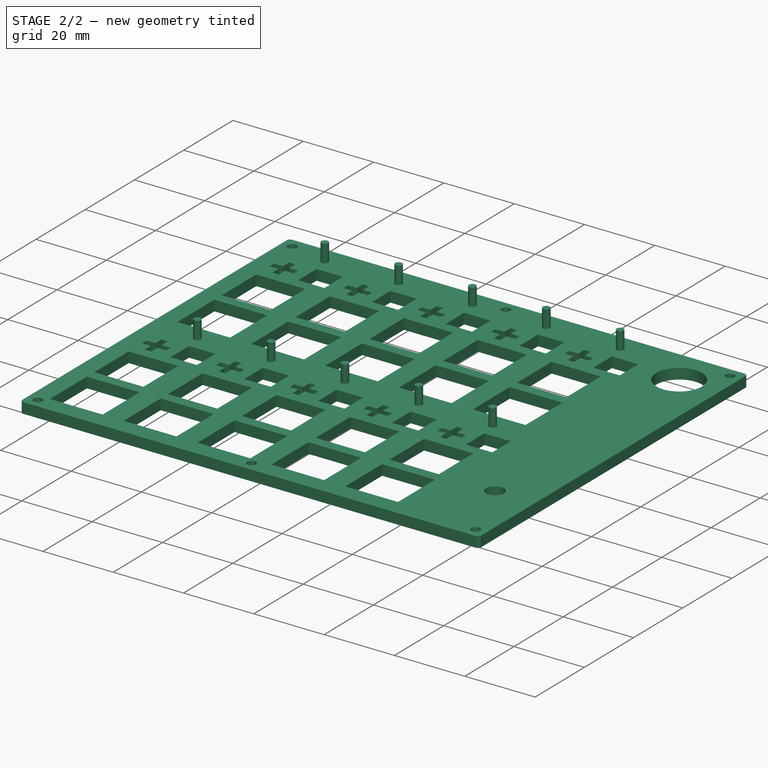
[diagram: stage 2 of 2 — iso view after this stage's code; geometry added in this stage tinted green]
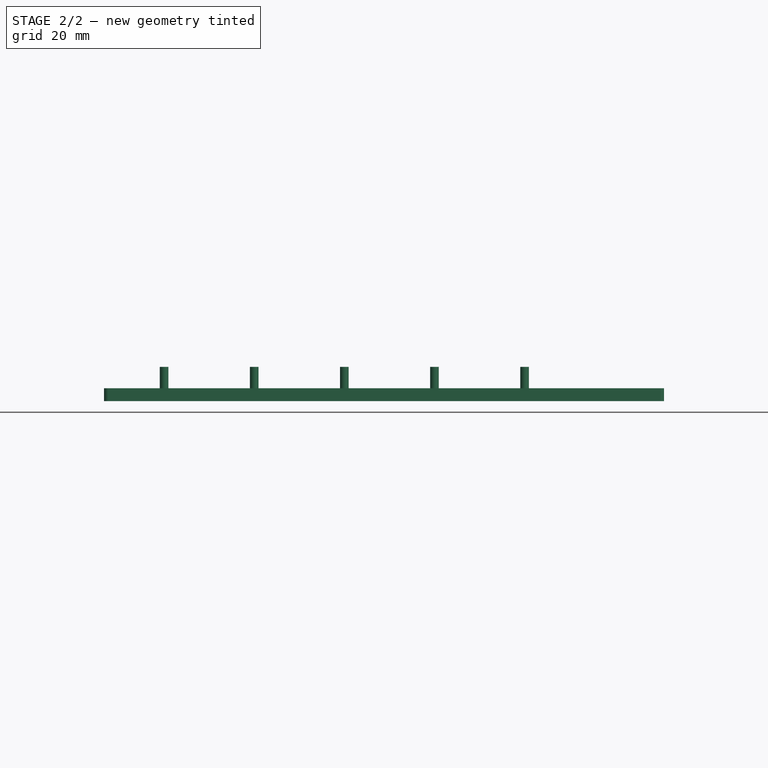
[diagram: stage 2 of 2 — front view after this stage's code; geometry added in this stage tinted green]
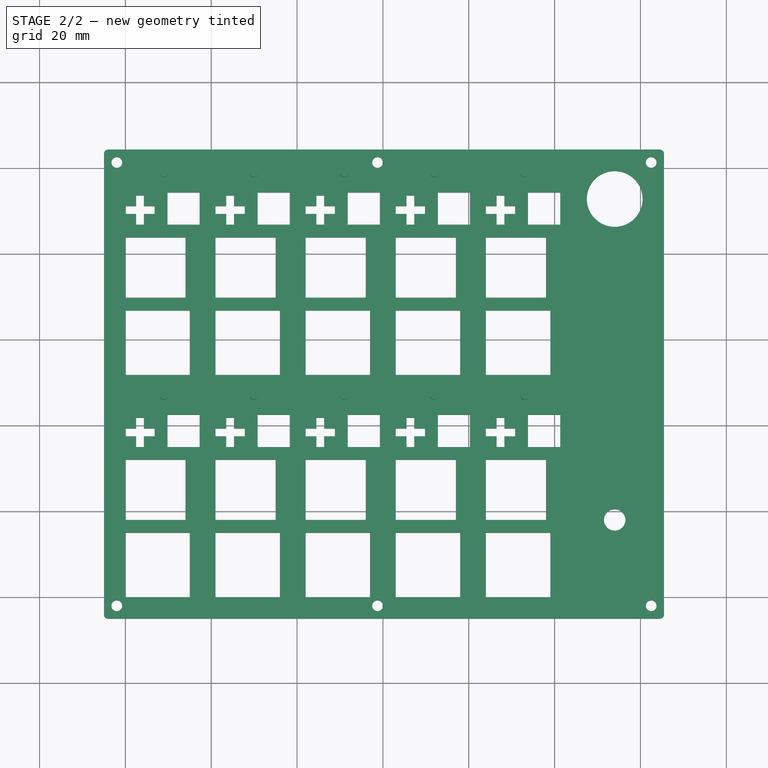
[diagram: stage 2 of 2 — top view after this stage's code; geometry added in this stage tinted green]
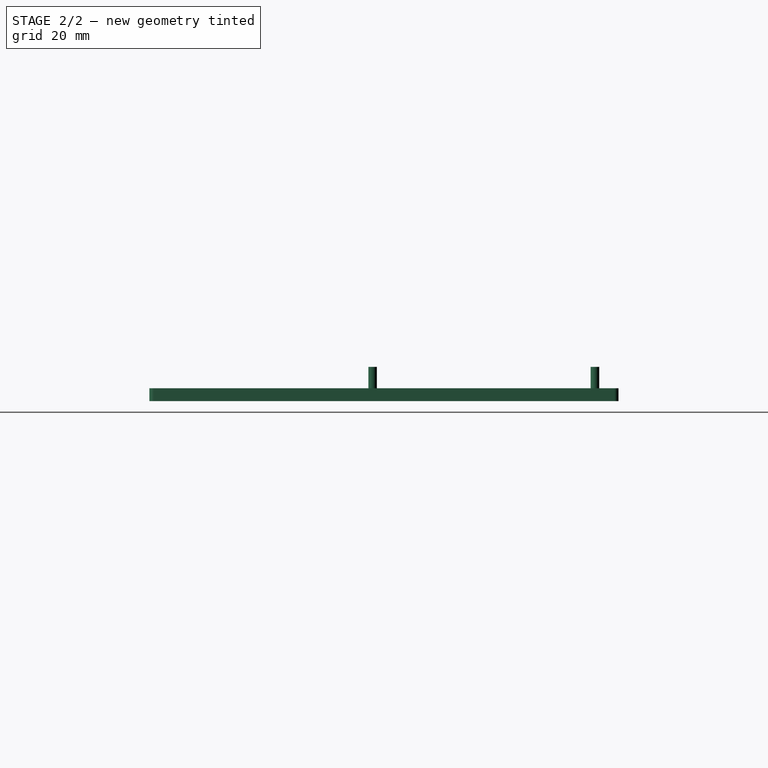
[diagram: stage 2 of 2 — right view after this stage's code; geometry added in this stage tinted green]
FEATURE [PartDesign::Fillet] Fillet
  Base = -> Pad001 [Edge1,Edge2,Edge5,Edge8]
  BaseFeature = -> Pad001
  Radius = 1
FEATURE [PartDesign::Body] Body
  Group = -> [Sketch,Pad,Sketch001,Pad001,Fillet]
  Origin = -> Origin
  Tip = -> Fillet
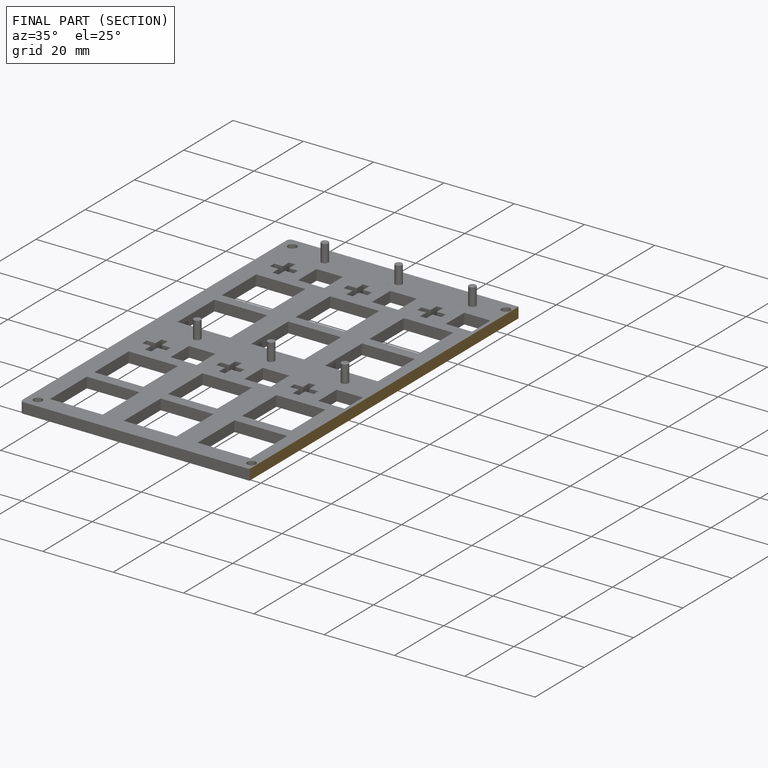
[diagram: finished part — half-section view (interior)]
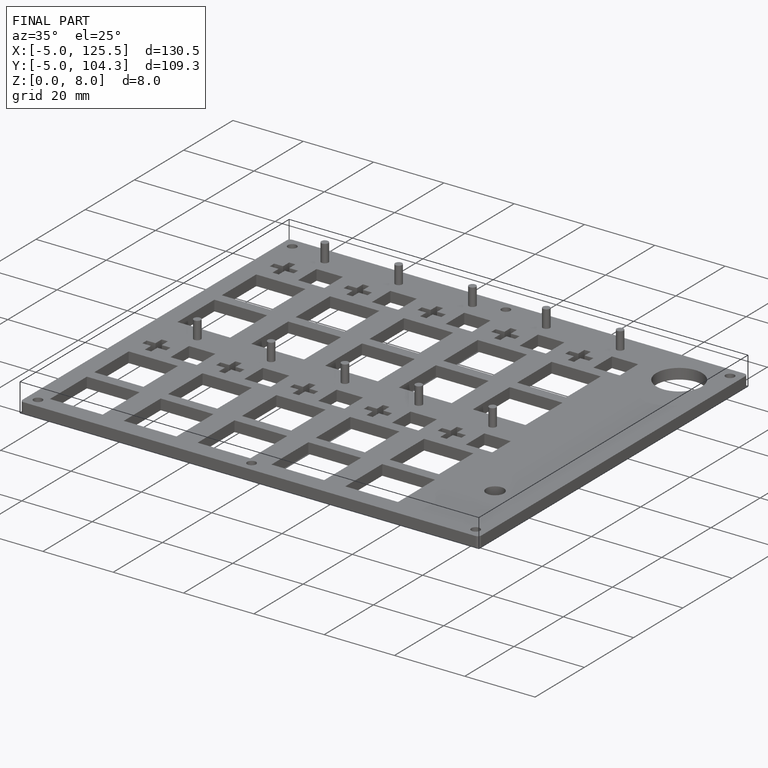
[diagram: finished part — iso view with bounding-box wireframe]
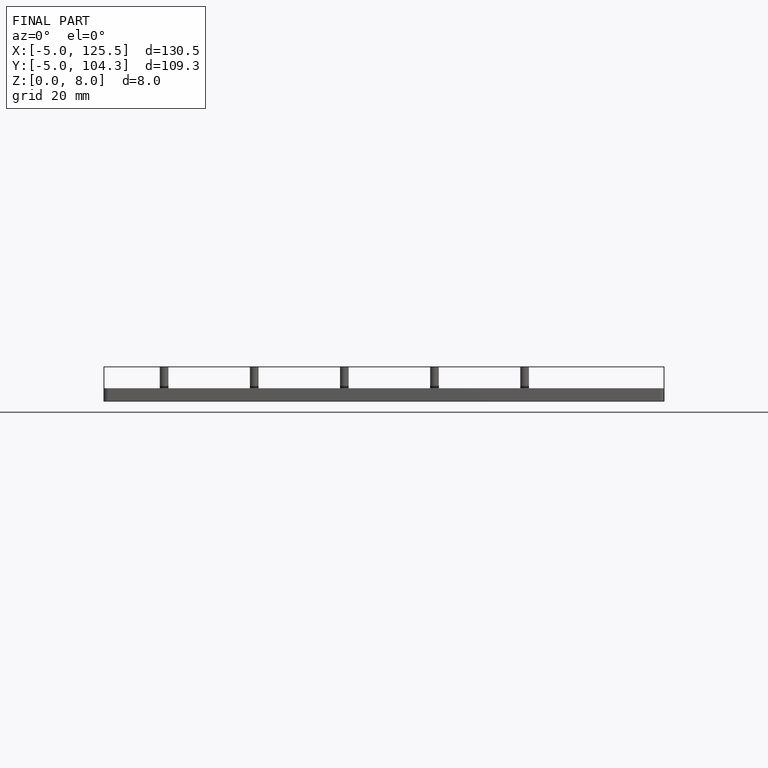
[diagram: finished part — front view with bounding-box wireframe]
